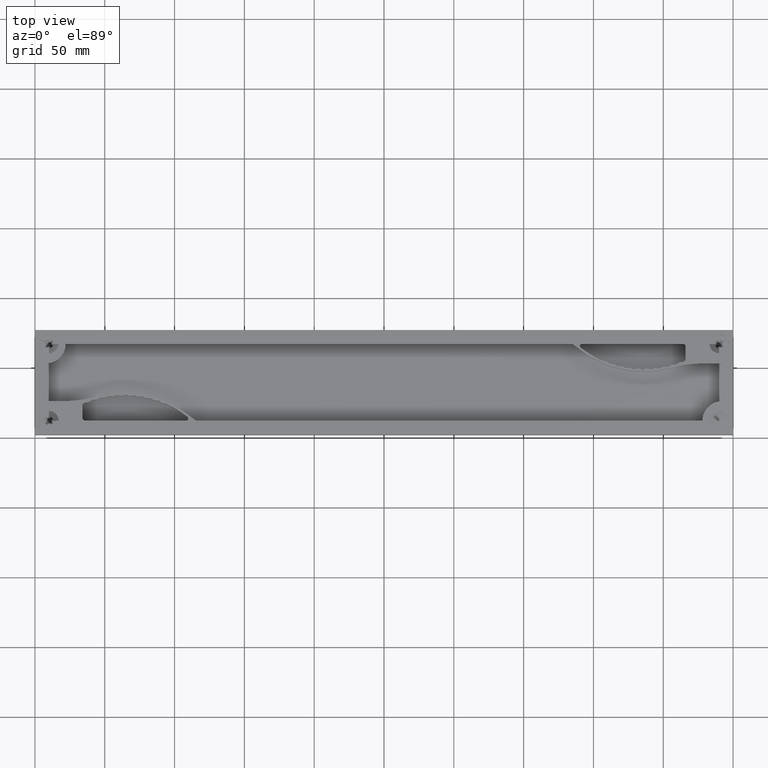
[diagram: clean part render]
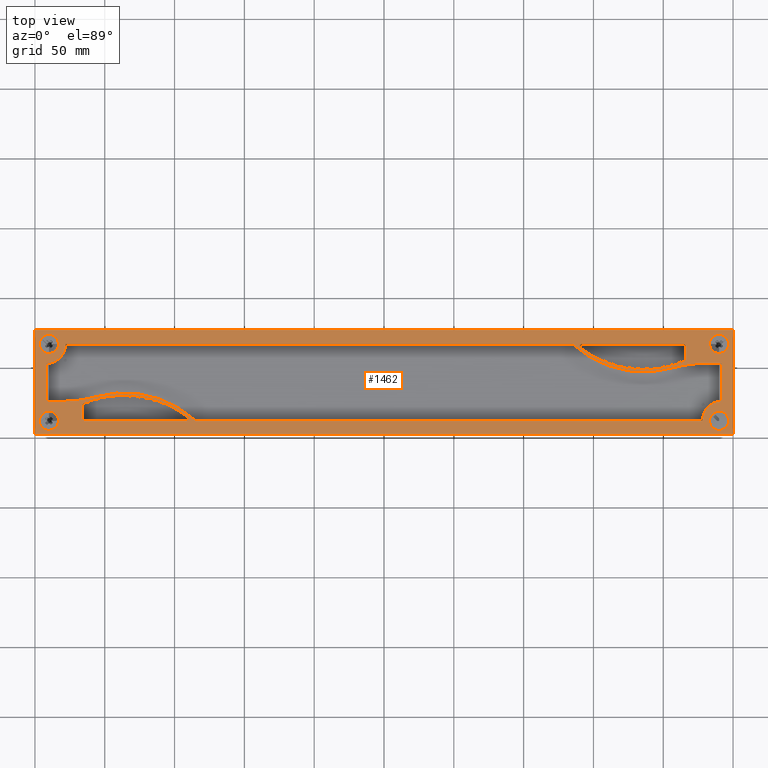
[diagram: same view with one face highlighted and labeled with its STEP entity id]
A machine part, top view. The second image highlights one B-rep face of the part: STEP entity #1462.
In plain terms, the highlighted planar face has unit normal (0, 0, -1).
Its self-contained STEP definition (entity closure, byte-faithful):
#1462=ADVANCED_FACE('',(#3495,#3496,#3497,#3498,#3499,#3500,#3501,#3502),#3503,.F.);
#3495=FACE_OUTER_BOUND('',#6240,.T.);
#3496=FACE_BOUND('',#6241,.T.);
#3497=FACE_BOUND('',#6242,.T.);
#3498=FACE_BOUND('',#6243,.T.);
#3499=FACE_BOUND('',#6244,.T.);
#3500=FACE_BOUND('',#6245,.T.);
#3501=FACE_BOUND('',#6246,.T.);
#3502=FACE_BOUND('',#6247,.T.);
#3503=PLANE('',#6248);
#6240=EDGE_LOOP('',(#9939,#9940,#9941,#9942));
#6241=EDGE_LOOP('',(#9943,#9944));
#6242=EDGE_LOOP('',(#9945,#9946));
#6243=EDGE_LOOP('',(#9947,#9948));
#6244=EDGE_LOOP('',(#9949,#9950));
#6245=EDGE_LOOP('',(#9951,#9952,#9953,#9954,#9955,#9956,#9957,#9958,#9959,#9960,#9961,#9962,#9963,#9964,#9965,#9966,#9967,#9968,#9969,#9970,#9971,#9972,#9973,#9974,#9975,#9976,#9977,#9978,#9979,#9980,#9981,#9982,#9983,#9984,#9985,#9986,#9987,#9988,#9989,#9990,#9991,#9992,#9993,#9994,#9995,#9996));
#6246=EDGE_LOOP('',(#9997,#9998,#9999,#10000,#10001,#10002,#10003,#10004,#10005,#10006,#10007,#10008,#10009,#10010,#10011,#10012,#10013,#10014,#10015,#10016,#10017,#10018,#10019,#10020,#10021,#10022,#10023,#10024,#10025,#10026,#10027,#10028,#10029,#10030,#10031,#10032,#10033,#10034,#10035,#10036,#10037,#10038,#10039,#10040,#10041,#10042));
#6247=EDGE_LOOP('',(#10043,#10044,#10045,#10046,#10047,#10048,#10049,#10050,#10051,#10052,#10053,#10054));
#6248=AXIS2_PLACEMENT_3D('',#10055,#10056,#10057);
#9939=ORIENTED_EDGE('',*,*,#17376,.T.);
#9940=ORIENTED_EDGE('',*,*,#17373,.F.);
#9941=ORIENTED_EDGE('',*,*,#17377,.F.);
#9942=ORIENTED_EDGE('',*,*,#17370,.F.);
#9943=ORIENTED_EDGE('',*,*,#16759,.T.);
#9944=ORIENTED_EDGE('',*,*,#16933,.T.);
#9945=ORIENTED_EDGE('',*,*,#16754,.T.);
#9946=ORIENTED_EDGE('',*,*,#16937,.T.);
#9947=ORIENTED_EDGE('',*,*,#16749,.T.);
#9948=ORIENTED_EDGE('',*,*,#16941,.T.);
#9949=ORIENTED_EDGE('',*,*,#16744,.T.);
#9950=ORIENTED_EDGE('',*,*,#16945,.T.);
#9951=ORIENTED_EDGE('',*,*,#16951,.T.);
#9952=ORIENTED_EDGE('',*,*,#17131,.T.);
#9953=ORIENTED_EDGE('',*,*,#17127,.T.);
#9954=ORIENTED_EDGE('',*,*,#17123,.T.);
#9955=ORIENTED_EDGE('',*,*,#17119,.T.);
#9956=ORIENTED_EDGE('',*,*,#17115,.T.);
#9957=ORIENTED_EDGE('',*,*,#17111,.T.);
#9958=ORIENTED_EDGE('',*,*,#17107,.T.);
#9959=ORIENTED_EDGE('',*,*,#17103,.T.);
#9960=ORIENTED_EDGE('',*,*,#17099,.T.);
#9961=ORIENTED_EDGE('',*,*,#17095,.T.);
#9962=ORIENTED_EDGE('',*,*,#17091,.T.);
#9963=ORIENTED_EDGE('',*,*,#17087,.T.);
#9964=ORIENTED_EDGE('',*,*,#17083,.T.);
#9965=ORIENTED_EDGE('',*,*,#17079,.T.);
#9966=ORIENTED_EDGE('',*,*,#17075,.T.);
#9967=ORIENTED_EDGE('',*,*,#17071,.T.);
#9968=ORIENTED_EDGE('',*,*,#17067,.T.);
#9969=ORIENTED_EDGE('',*,*,#17063,.T.);
#9970=ORIENTED_EDGE('',*,*,#17059,.T.);
#9971=ORIENTED_EDGE('',*,*,#17055,.T.);
#9972=ORIENTED_EDGE('',*,*,#17051,.T.);
#9973=ORIENTED_EDGE('',*,*,#17047,.T.);
#9974=ORIENTED_EDGE('',*,*,#17043,.T.);
#9975=ORIENTED_EDGE('',*,*,#17039,.T.);
#9976=ORIENTED_EDGE('',*,*,#17035,.T.);
#9977=ORIENTED_EDGE('',*,*,#17031,.T.);
#9978=ORIENTED_EDGE('',*,*,#17027,.T.);
#9979=ORIENTED_EDGE('',*,*,#17023,.T.);
#9980=ORIENTED_EDGE('',*,*,#17019,.T.);
#9981=ORIENTED_EDGE('',*,*,#17015,.T.);
#9982=ORIENTED_EDGE('',*,*,#17011,.T.);
#9983=ORIENTED_EDGE('',*,*,#17007,.T.);
#9984=ORIENTED_EDGE('',*,*,#17003,.T.);
#9985=ORIENTED_EDGE('',*,*,#16999,.T.);
#9986=ORIENTED_EDGE('',*,*,#16995,.T.);
#9987=ORIENTED_EDGE('',*,*,#16991,.T.);
#9988=ORIENTED_EDGE('',*,*,#16987,.T.);
#9989=ORIENTED_EDGE('',*,*,#16983,.T.);
#9990=ORIENTED_EDGE('',*,*,#16979,.T.);
#9991=ORIENTED_EDGE('',*,*,#16975,.T.);
#9992=ORIENTED_EDGE('',*,*,#16971,.T.);
#9993=ORIENTED_EDGE('',*,*,#16967,.T.);
#9994=ORIENTED_EDGE('',*,*,#16963,.T.);
#9995=ORIENTED_EDGE('',*,*,#16959,.T.);
#9996=ORIENTED_EDGE('',*,*,#16955,.T.);
#9997=ORIENTED_EDGE('',*,*,#17136,.T.);
#9998=ORIENTED_EDGE('',*,*,#17316,.T.);
#9999=ORIENTED_EDGE('',*,*,#17312,.T.);
#10000=ORIENTED_EDGE('',*,*,#17308,.T.);
#10001=ORIENTED_EDGE('',*,*,#17304,.T.);
#10002=ORIENTED_EDGE('',*,*,#17300,.T.);
#10003=ORIENTED_EDGE('',*,*,#17296,.T.);
#10004=ORIENTED_EDGE('',*,*,#17292,.T.);
#10005=ORIENTED_EDGE('',*,*,#17288,.T.);
#10006=ORIENTED_EDGE('',*,*,#17284,.T.);
#10007=ORIENTED_EDGE('',*,*,#17280,.T.);
#10008=ORIENTED_EDGE('',*,*,#17276,.T.);
#10009=ORIENTED_EDGE('',*,*,#17272,.T.);
#10010=ORIENTED_EDGE('',*,*,#17268,.T.);
#10011=ORIENTED_EDGE('',*,*,#17264,.T.);
#10012=ORIENTED_EDGE('',*,*,#17260,.T.);
#10013=ORIENTED_EDGE('',*,*,#17256,.T.);
#10014=ORIENTED_EDGE('',*,*,#17252,.T.);
#10015=ORIENTED_EDGE('',*,*,#17248,.T.);
#10016=ORIENTED_EDGE('',*,*,#17244,.T.);
#10017=ORIENTED_EDGE('',*,*,#17240,.T.);
#10018=ORIENTED_EDGE('',*,*,#17236,.T.);
#10019=ORIENTED_EDGE('',*,*,#17232,.T.);
#10020=ORIENTED_EDGE('',*,*,#17228,.T.);
#10021=ORIENTED_EDGE('',*,*,#17224,.T.);
#10022=ORIENTED_EDGE('',*,*,#17220,.T.);
#10023=ORIENTED_EDGE('',*,*,#17216,.T.);
#10024=ORIENTED_EDGE('',*,*,#17212,.T.);
#10025=ORIENTED_EDGE('',*,*,#17208,.T.);
#10026=ORIENTED_EDGE('',*,*,#17204,.T.);
#10027=ORIENTED_EDGE('',*,*,#17200,.T.);
#10028=ORIENTED_EDGE('',*,*,#17196,.T.);
#10029=ORIENTED_EDGE('',*,*,#17192,.T.);
#10030=ORIENTED_EDGE('',*,*,#17188,.T.);
#10031=ORIENTED_EDGE('',*,*,#17184,.T.);
#10032=ORIENTED_EDGE('',*,*,#17180,.T.);
#10033=ORIENTED_EDGE('',*,*,#17176,.T.);
#10034=ORIENTED_EDGE('',*,*,#17172,.T.);
#10035=ORIENTED_EDGE('',*,*,#17168,.T.);
#10036=ORIENTED_EDGE('',*,*,#17164,.T.);
#10037=ORIENTED_EDGE('',*,*,#17160,.T.);
#10038=ORIENTED_EDGE('',*,*,#17156,.T.);
#10039=ORIENTED_EDGE('',*,*,#17152,.T.);
#10040=ORIENTED_EDGE('',*,*,#17148,.T.);
#10041=ORIENTED_EDGE('',*,*,#17144,.T.);
#10042=ORIENTED_EDGE('',*,*,#17140,.T.);
#10043=ORIENTED_EDGE('',*,*,#17364,.T.);
#10044=ORIENTED_EDGE('',*,*,#17321,.T.);
#10045=ORIENTED_EDGE('',*,*,#17326,.F.);
#10046=ORIENTED_EDGE('',*,*,#17330,.F.);
#10047=ORIENTED_EDGE('',*,*,#17334,.T.);
#10048=ORIENTED_EDGE('',*,*,#17366,.T.);
#10049=ORIENTED_EDGE('',*,*,#17355,.T.);
#10050=ORIENTED_EDGE('',*,*,#17346,.T.);
#10051=ORIENTED_EDGE('',*,*,#17350,.F.);
#10052=ORIENTED_EDGE('',*,*,#17353,.F.);
#10053=ORIENTED_EDGE('',*,*,#17362,.T.);
#10054=ORIENTED_EDGE('',*,*,#17359,.T.);
#10055=CARTESIAN_POINT('',(250.0,37.5,136.8));
#10056=DIRECTION('',(0.0,0.0,-1.0));
#10057=DIRECTION('',(1.0,0.0,0.0));
#16744=EDGE_CURVE('',#20011,#20015,#20017,.T.);
#16749=EDGE_CURVE('',#20020,#20024,#20026,.T.);
#16754=EDGE_CURVE('',#20029,#20033,#20035,.T.);
#16759=EDGE_CURVE('',#20038,#20042,#20044,.T.);
#16933=EDGE_CURVE('',#20042,#20038,#20302,.T.);
#16937=EDGE_CURVE('',#20033,#20029,#20306,.T.);
#16941=EDGE_CURVE('',#20024,#20020,#20310,.T.);
#16945=EDGE_CURVE('',#20015,#20011,#20314,.T.);
#16951=EDGE_CURVE('',#20323,#20321,#20324,.T.);
#16955=EDGE_CURVE('',#20329,#20323,#20330,.T.);
#16959=EDGE_CURVE('',#20335,#20329,#20336,.T.);
#16963=EDGE_CURVE('',#20341,#20335,#20342,.T.);
#16967=EDGE_CURVE('',#20347,#20341,#20348,.T.);
#16971=EDGE_CURVE('',#20353,#20347,#20354,.T.);
#16975=EDGE_CURVE('',#20359,#20353,#20360,.T.);
#16979=EDGE_CURVE('',#20365,#20359,#20366,.T.);
#16983=EDGE_CURVE('',#20371,#20365,#20372,.T.);
#16987=EDGE_CURVE('',#20377,#20371,#20378,.T.);
#16991=EDGE_CURVE('',#20383,#20377,#20384,.T.);
#16995=EDGE_CURVE('',#20389,#20383,#20390,.T.);
#16999=EDGE_CURVE('',#20395,#20389,#20396,.T.);
#17003=EDGE_CURVE('',#20401,#20395,#20402,.T.);
#17007=EDGE_CURVE('',#20407,#20401,#20408,.T.);
#17011=EDGE_CURVE('',#20413,#20407,#20414,.T.);
#17015=EDGE_CURVE('',#20419,#20413,#20420,.T.);
#17019=EDGE_CURVE('',#20425,#20419,#20426,.T.);
#17023=EDGE_CURVE('',#20431,#20425,#20432,.T.);
#17027=EDGE_CURVE('',#20437,#20431,#20438,.T.);
#17031=EDGE_CURVE('',#20443,#20437,#20444,.T.);
#17035=EDGE_CURVE('',#20449,#20443,#20450,.T.);
#17039=EDGE_CURVE('',#20455,#20449,#20456,.T.);
#17043=EDGE_CURVE('',#20461,#20455,#20462,.T.);
#17047=EDGE_CURVE('',#20467,#20461,#20468,.T.);
#17051=EDGE_CURVE('',#20473,#20467,#20474,.T.);
#17055=EDGE_CURVE('',#20479,#20473,#20480,.T.);
#17059=EDGE_CURVE('',#20485,#20479,#20486,.T.);
#17063=EDGE_CURVE('',#20491,#20485,#20492,.T.);
#17067=EDGE_CURVE('',#20497,#20491,#20498,.T.);
#17071=EDGE_CURVE('',#20503,#20497,#20504,.T.);
#17075=EDGE_CURVE('',#20509,#20503,#20510,.T.);
#17079=EDGE_CURVE('',#20515,#20509,#20516,.T.);
#17083=EDGE_CURVE('',#20521,#20515,#20522,.T.);
#17087=EDGE_CURVE('',#20527,#20521,#20528,.T.);
#17091=EDGE_CURVE('',#20533,#20527,#20534,.T.);
#17095=EDGE_CURVE('',#20539,#20533,#20540,.T.);
#17099=EDGE_CURVE('',#20545,#20539,#20546,.T.);
#17103=EDGE_CURVE('',#20551,#20545,#20552,.T.);
#17107=EDGE_CURVE('',#20557,#20551,#20558,.T.);
#17111=EDGE_CURVE('',#20563,#20557,#20564,.T.);
#17115=EDGE_CURVE('',#20569,#20563,#20570,.T.);
#17119=EDGE_CURVE('',#20575,#20569,#20576,.T.);
#17123=EDGE_CURVE('',#20581,#20575,#20582,.T.);
#17127=EDGE_CURVE('',#20587,#20581,#20588,.T.);
#17131=EDGE_CURVE('',#20321,#20587,#20592,.T.);
#17136=EDGE_CURVE('',#20600,#20598,#20601,.T.);
#17140=EDGE_CURVE('',#20606,#20600,#20607,.T.);
#17144=EDGE_CURVE('',#20612,#20606,#20613,.T.);
#17148=EDGE_CURVE('',#20618,#20612,#20619,.T.);
#17152=EDGE_CURVE('',#20624,#20618,#20625,.T.);
#17156=EDGE_CURVE('',#20630,#20624,#20631,.T.);
#17160=EDGE_CURVE('',#20636,#20630,#20637,.T.);
#17164=EDGE_CURVE('',#20642,#20636,#20643,.T.);
#17168=EDGE_CURVE('',#20648,#20642,#20649,.T.);
#17172=EDGE_CURVE('',#20654,#20648,#20655,.T.);
#17176=EDGE_CURVE('',#20660,#20654,#20661,.T.);
#17180=EDGE_CURVE('',#20666,#20660,#20667,.T.);
#17184=EDGE_CURVE('',#20672,#20666,#20673,.T.);
#17188=EDGE_CURVE('',#20678,#20672,#20679,.T.);
#17192=EDGE_CURVE('',#20684,#20678,#20685,.T.);
#17196=EDGE_CURVE('',#20690,#20684,#20691,.T.);
#17200=EDGE_CURVE('',#20696,#20690,#20697,.T.);
#17204=EDGE_CURVE('',#20702,#20696,#20703,.T.);
#17208=EDGE_CURVE('',#20708,#20702,#20709,.T.);
#17212=EDGE_CURVE('',#20714,#20708,#20715,.T.);
#17216=EDGE_CURVE('',#20720,#20714,#20721,.T.);
#17220=EDGE_CURVE('',#20726,#20720,#20727,.T.);
#17224=EDGE_CURVE('',#20732,#20726,#20733,.T.);
#17228=EDGE_CURVE('',#20738,#20732,#20739,.T.);
#17232=EDGE_CURVE('',#20744,#20738,#20745,.T.);
#17236=EDGE_CURVE('',#20750,#20744,#20751,.T.);
#17240=EDGE_CURVE('',#20756,#20750,#20757,.T.);
#17244=EDGE_CURVE('',#20762,#20756,#20763,.T.);
#17248=EDGE_CURVE('',#20768,#20762,#20769,.T.);
#17252=EDGE_CURVE('',#20774,#20768,#20775,.T.);
#17256=EDGE_CURVE('',#20780,#20774,#20781,.T.);
#17260=EDGE_CURVE('',#20786,#20780,#20787,.T.);
#17264=EDGE_CURVE('',#20792,#20786,#20793,.T.);
#17268=EDGE_CURVE('',#20798,#20792,#20799,.T.);
#17272=EDGE_CURVE('',#20804,#20798,#20805,.T.);
#17276=EDGE_CURVE('',#20810,#20804,#20811,.T.);
#17280=EDGE_CURVE('',#20816,#20810,#20817,.T.);
#17284=EDGE_CURVE('',#20822,#20816,#20823,.T.);
#17288=EDGE_CURVE('',#20828,#20822,#20829,.T.);
#17292=EDGE_CURVE('',#20834,#20828,#20835,.T.);
#17296=EDGE_CURVE('',#20840,#20834,#20841,.T.);
#17300=EDGE_CURVE('',#20846,#20840,#20847,.T.);
#17304=EDGE_CURVE('',#20852,#20846,#20853,.T.);
#17308=EDGE_CURVE('',#20858,#20852,#20859,.T.);
#17312=EDGE_CURVE('',#20864,#20858,#20865,.T.);
#17316=EDGE_CURVE('',#20598,#20864,#20869,.T.);
#17321=EDGE_CURVE('',#20877,#20875,#20878,.T.);
#17326=EDGE_CURVE('',#20883,#20875,#20885,.T.);
#17330=EDGE_CURVE('',#20889,#20883,#20891,.T.);
#17334=EDGE_CURVE('',#20889,#20895,#20897,.T.);
#17346=EDGE_CURVE('',#20917,#20915,#20918,.T.);
#17350=EDGE_CURVE('',#20921,#20915,#20923,.T.);
#17353=EDGE_CURVE('',#20925,#20921,#20927,.T.);
#17355=EDGE_CURVE('',#20929,#20917,#20930,.T.);
#17359=EDGE_CURVE('',#20935,#20933,#20936,.T.);
#17362=EDGE_CURVE('',#20925,#20935,#20939,.T.);
#17364=EDGE_CURVE('',#20933,#20877,#20941,.T.);
#17366=EDGE_CURVE('',#20895,#20929,#20943,.T.);
#17370=EDGE_CURVE('',#20947,#20945,#20949,.T.);
#17373=EDGE_CURVE('',#20951,#20953,#20954,.T.);
#17376=EDGE_CURVE('',#20947,#20953,#20957,.T.);
#17377=EDGE_CURVE('',#20945,#20951,#20958,.T.);
#20011=VERTEX_POINT('',#24848);
#20015=VERTEX_POINT('',#24853);
#20017=CIRCLE('',#24856,6.85);
#20020=VERTEX_POINT('',#24859);
#20024=VERTEX_POINT('',#24864);
#20026=CIRCLE('',#24867,6.85);
#20029=VERTEX_POINT('',#24870);
#20033=VERTEX_POINT('',#24875);
#20035=CIRCLE('',#24878,6.85);
#20038=VERTEX_POINT('',#24881);
#20042=VERTEX_POINT('',#24886);
#20044=CIRCLE('',#24889,6.85);
#20302=CIRCLE('',#25247,6.85);
#20306=CIRCLE('',#25251,6.85);
#20310=CIRCLE('',#25255,6.85);
#20314=CIRCLE('',#25259,6.85);
#20321=VERTEX_POINT('',#25267);
#20323=VERTEX_POINT('',#25270);
#20324=LINE('',#25271,#25272);
#20329=VERTEX_POINT('',#25278);
#20330=CIRCLE('',#25279,1.4941604649);
#20335=VERTEX_POINT('',#25285);
#20336=CIRCLE('',#25286,73.4296730345997);
#20341=VERTEX_POINT('',#25293);
#20342=LINE('',#25294,#25295);
#20347=VERTEX_POINT('',#25301);
#20348=CIRCLE('',#25302,79.1827061398534);
#20353=VERTEX_POINT('',#25309);
#20354=LINE('',#25310,#25311);
#20359=VERTEX_POINT('',#25317);
#20360=CIRCLE('',#25318,97.8456988178513);
#20365=VERTEX_POINT('',#25325);
#20366=LINE('',#25326,#25327);
#20371=VERTEX_POINT('',#25333);
#20372=CIRCLE('',#25334,87.6979515937337);
#20377=VERTEX_POINT('',#25341);
#20378=LINE('',#25342,#25343);
#20383=VERTEX_POINT('',#25349);
#20384=CIRCLE('',#25350,78.3667684627986);
#20389=VERTEX_POINT('',#25357);
#20390=LINE('',#25358,#25359);
#20395=VERTEX_POINT('',#25365);
#20396=CIRCLE('',#25366,98.7825019353044);
#20401=VERTEX_POINT('',#25373);
#20402=LINE('',#25374,#25375);
#20407=VERTEX_POINT('',#25381);
#20408=CIRCLE('',#25382,76.0783495209778);
#20413=VERTEX_POINT('',#25389);
#20414=LINE('',#25390,#25391);
#20419=VERTEX_POINT('',#25397);
#20420=CIRCLE('',#25398,94.627261413129);
#20425=VERTEX_POINT('',#25405);
#20426=LINE('',#25406,#25407);
#20431=VERTEX_POINT('',#25413);
#20432=CIRCLE('',#25414,100.54484498576);
#20437=VERTEX_POINT('',#25421);
#20438=LINE('',#25422,#25423);
#20443=VERTEX_POINT('',#25429);
#20444=CIRCLE('',#25430,85.3144068020878);
#20449=VERTEX_POINT('',#25437);
#20450=LINE('',#25438,#25439);
#20455=VERTEX_POINT('',#25445);
#20456=CIRCLE('',#25446,79.2259488983683);
#20461=VERTEX_POINT('',#25453);
#20462=LINE('',#25454,#25455);
#20467=VERTEX_POINT('',#25461);
#20468=CIRCLE('',#25462,72.3003572930092);
#20473=VERTEX_POINT('',#25469);
#20474=LINE('',#25470,#25471);
#20479=VERTEX_POINT('',#25477);
#20480=CIRCLE('',#25478,65.7624824520744);
#20485=VERTEX_POINT('',#25485);
#20486=LINE('',#25486,#25487);
#20491=VERTEX_POINT('',#25493);
#20492=CIRCLE('',#25494,64.7003800457615);
#20497=VERTEX_POINT('',#25501);
#20498=LINE('',#25502,#25503);
#20503=VERTEX_POINT('',#25509);
#20504=CIRCLE('',#25510,57.2374791841819);
#20509=VERTEX_POINT('',#25517);
#20510=LINE('',#25518,#25519);
#20515=VERTEX_POINT('',#25525);
#20516=CIRCLE('',#25526,60.3679550864432);
#20521=VERTEX_POINT('',#25533);
#20522=LINE('',#25534,#25535);
#20527=VERTEX_POINT('',#25541);
#20528=CIRCLE('',#25542,73.6684887778374);
#20533=VERTEX_POINT('',#25549);
#20534=LINE('',#25550,#25551);
#20539=VERTEX_POINT('',#25557);
#20540=CIRCLE('',#25558,65.3318505641465);
#20545=VERTEX_POINT('',#25565);
#20546=LINE('',#25566,#25567);
#20551=VERTEX_POINT('',#25573);
#20552=CIRCLE('',#25574,62.2063943621606);
#20557=VERTEX_POINT('',#25581);
#20558=LINE('',#25582,#25583);
#20563=VERTEX_POINT('',#25589);
#20564=CIRCLE('',#25590,63.8563649370615);
#20569=VERTEX_POINT('',#25597);
#20570=LINE('',#25598,#25599);
#20575=VERTEX_POINT('',#25605);
#20576=CIRCLE('',#25606,78.3533317103426);
#20581=VERTEX_POINT('',#25612);
#20582=CIRCLE('',#25613,2.00738935259991);
#20587=VERTEX_POINT('',#25620);
#20588=LINE('',#25621,#25622);
#20592=CIRCLE('',#25627,2.00000000809996);
#20598=VERTEX_POINT('',#25634);
#20600=VERTEX_POINT('',#25637);
#20601=LINE('',#25638,#25639);
#20606=VERTEX_POINT('',#25645);
#20607=CIRCLE('',#25646,1.4941604649);
#20612=VERTEX_POINT('',#25652);
#20613=CIRCLE('',#25653,73.4296730345997);
#20618=VERTEX_POINT('',#25660);
#20619=LINE('',#25661,#25662);
#20624=VERTEX_POINT('',#25668);
#20625=CIRCLE('',#25669,79.1827061398534);
#20630=VERTEX_POINT('',#25676);
#20631=LINE('',#25677,#25678);
#20636=VERTEX_POINT('',#25684);
#20637=CIRCLE('',#25685,97.8456988178513);
#20642=VERTEX_POINT('',#25692);
#20643=LINE('',#25693,#25694);
#20648=VERTEX_POINT('',#25700);
#20649=CIRCLE('',#25701,87.6979515937337);
#20654=VERTEX_POINT('',#25708);
#20655=LINE('',#25709,#25710);
#20660=VERTEX_POINT('',#25716);
#20661=CIRCLE('',#25717,78.3667684627986);
#20666=VERTEX_POINT('',#25724);
#20667=LINE('',#25725,#25726);
#20672=VERTEX_POINT('',#25732);
#20673=CIRCLE('',#25733,98.7825019353044);
#20678=VERTEX_POINT('',#25740);
#20679=LINE('',#25741,#25742);
#20684=VERTEX_POINT('',#25748);
#20685=CIRCLE('',#25749,76.0783495209778);
#20690=VERTEX_POINT('',#25756);
#20691=LINE('',#25757,#25758);
#20696=VERTEX_POINT('',#25764);
#20697=CIRCLE('',#25765,94.627261413129);
#20702=VERTEX_POINT('',#25772);
#20703=LINE('',#25773,#25774);
#20708=VERTEX_POINT('',#25780);
#20709=CIRCLE('',#25781,100.54484498576);
#20714=VERTEX_POINT('',#25788);
#20715=LINE('',#25789,#25790);
#20720=VERTEX_POINT('',#25796);
#20721=CIRCLE('',#25797,85.3144068020878);
#20726=VERTEX_POINT('',#25804);
#20727=LINE('',#25805,#25806);
#20732=VERTEX_POINT('',#25812);
#20733=CIRCLE('',#25813,79.2259488983683);
#20738=VERTEX_POINT('',#25820);
#20739=LINE('',#25821,#25822);
#20744=VERTEX_POINT('',#25828);
#20745=CIRCLE('',#25829,72.3003572930092);
#20750=VERTEX_POINT('',#25836);
#20751=LINE('',#25837,#25838);
#20756=VERTEX_POINT('',#25844);
#20757=CIRCLE('',#25845,65.7624824520744);
#20762=VERTEX_POINT('',#25852);
#20763=LINE('',#25853,#25854);
#20768=VERTEX_POINT('',#25860);
#20769=CIRCLE('',#25861,64.7003800457615);
#20774=VERTEX_POINT('',#25868);
#20775=LINE('',#25869,#25870);
#20780=VERTEX_POINT('',#25876);
#20781=CIRCLE('',#25877,57.2374791841819);
#20786=VERTEX_POINT('',#25884);
#20787=LINE('',#25885,#25886);
#20792=VERTEX_POINT('',#25892);
#20793=CIRCLE('',#25893,60.3679550864432);
#20798=VERTEX_POINT('',#25900);
#20799=LINE('',#25901,#25902);
#20804=VERTEX_POINT('',#25908);
#20805=CIRCLE('',#25909,73.6684887778374);
#20810=VERTEX_POINT('',#25916);
#20811=LINE('',#25917,#25918);
#20816=VERTEX_POINT('',#25924);
#20817=CIRCLE('',#25925,65.3318505641465);
#20822=VERTEX_POINT('',#25932);
#20823=LINE('',#25933,#25934);
#20828=VERTEX_POINT('',#25940);
#20829=CIRCLE('',#25941,62.2063943621606);
#20834=VERTEX_POINT('',#25948);
#20835=LINE('',#25949,#25950);
#20840=VERTEX_POINT('',#25956);
#20841=CIRCLE('',#25957,63.8563649370615);
#20846=VERTEX_POINT('',#25964);
#20847=LINE('',#25965,#25966);
#20852=VERTEX_POINT('',#25972);
#20853=CIRCLE('',#25973,78.3533317103426);
#20858=VERTEX_POINT('',#25979);
#20859=CIRCLE('',#25980,2.00738935259991);
#20864=VERTEX_POINT('',#25987);
#20865=LINE('',#25988,#25989);
#20869=CIRCLE('',#25994,2.00000000809996);
#20875=VERTEX_POINT('',#26000);
#20877=VERTEX_POINT('',#26003);
#20878=CIRCLE('',#26004,75.6272389424002);
#20883=VERTEX_POINT('',#26010);
#20885=CIRCLE('',#26013,77.8550620979006);
#20889=VERTEX_POINT('',#26018);
#20891=LINE('',#26021,#26022);
#20895=VERTEX_POINT('',#26027);
#20897=LINE('',#26030,#26031);
#20915=VERTEX_POINT('',#26053);
#20917=VERTEX_POINT('',#26056);
#20918=CIRCLE('',#26057,75.6272389424002);
#20921=VERTEX_POINT('',#26061);
#20923=CIRCLE('',#26064,77.8550620979006);
#20925=VERTEX_POINT('',#26066);
#20927=LINE('',#26069,#26070);
#20929=VERTEX_POINT('',#26072);
#20930=LINE('',#26073,#26074);
#20933=VERTEX_POINT('',#26078);
#20935=VERTEX_POINT('',#26081);
#20936=CIRCLE('',#26082,14.0);
#20939=LINE('',#26086,#26087);
#20941=LINE('',#26089,#26090);
#20943=CIRCLE('',#26092,14.0);
#20945=VERTEX_POINT('',#26094);
#20947=VERTEX_POINT('',#26097);
#20949=LINE('',#26100,#26101);
#20951=VERTEX_POINT('',#26103);
#20953=VERTEX_POINT('',#26106);
#20954=LINE('',#26107,#26108);
#20957=LINE('',#26112,#26113);
#20958=LINE('',#26114,#26115);
#24848=CARTESIAN_POINT('',(16.85,10.0,136.8));
#24853=CARTESIAN_POINT('',(3.15000000000001,10.0,136.8));
#24856=AXIS2_PLACEMENT_3D('',#31832,#31833,#31834);
#24859=CARTESIAN_POINT('',(16.85,65.0,136.8));
#24864=CARTESIAN_POINT('',(3.15000000000001,65.0,136.8));
#24867=AXIS2_PLACEMENT_3D('',#31840,#31841,#31842);
#24870=CARTESIAN_POINT('',(496.85,10.0,136.8));
#24875=CARTESIAN_POINT('',(483.15,10.0,136.8));
#24878=AXIS2_PLACEMENT_3D('',#31848,#31849,#31850);
#24881=CARTESIAN_POINT('',(496.85,65.0,136.8));
#24886=CARTESIAN_POINT('',(483.15,65.0,136.8));
#24889=AXIS2_PLACEMENT_3D('',#31856,#31857,#31858);
#25247=AXIS2_PLACEMENT_3D('',#32031,#32032,#32033);
#25251=AXIS2_PLACEMENT_3D('',#32037,#32038,#32039);
#25255=AXIS2_PLACEMENT_3D('',#32043,#32044,#32045);
#25259=AXIS2_PLACEMENT_3D('',#32049,#32050,#32051);
#25267=CARTESIAN_POINT('',(464.000000000002,65.0,136.8));
#25270=CARTESIAN_POINT('',(391.73,65.0,136.8));
#25271=CARTESIAN_POINT('',(338.932500000001,65.0,136.8));
#25272=VECTOR('',#32057,1.0);
#25278=CARTESIAN_POINT('',(390.810000000018,62.3299999999214,136.8));
#25279=AXIS2_PLACEMENT_3D('',#32062,#32063,#32064);
#25285=CARTESIAN_POINT('',(407.430000000042,52.4599999999103,136.8));
#25286=AXIS2_PLACEMENT_3D('',#32069,#32070,#32071);
#25293=CARTESIAN_POINT('',(407.62,52.91,136.8));
#25294=CARTESIAN_POINT('',(392.887594300078,18.017460184394,136.8));
#25295=VECTOR('',#32074,1.0);
#25301=CARTESIAN_POINT('',(410.38,51.799999999996,136.8));
#25302=AXIS2_PLACEMENT_3D('',#32079,#32080,#32081);
#25309=CARTESIAN_POINT('',(410.21,51.34,136.8));
#25310=CARTESIAN_POINT('',(398.376497920999,19.319935550936,136.8));
#25311=VECTOR('',#32084,1.0);
#25317=CARTESIAN_POINT('',(413.039999999972,50.3400000000006,136.8));
#25318=AXIS2_PLACEMENT_3D('',#32089,#32090,#32091);
#25325=CARTESIAN_POINT('',(413.19,50.81,136.8));
#25326=CARTESIAN_POINT('',(403.682224732949,21.0189708299071,136.8));
#25327=VECTOR('',#32094,1.0);
#25333=CARTESIAN_POINT('',(416.039999999977,49.9300000000075,136.8));
#25334=AXIS2_PLACEMENT_3D('',#32099,#32100,#32101);
#25341=CARTESIAN_POINT('',(415.91,49.45,136.8));
#25342=CARTESIAN_POINT('',(408.765874443996,23.0716902547523,136.8));
#25343=VECTOR('',#32104,1.0);
#25349=CARTESIAN_POINT('',(418.810000000044,48.6800000000626,136.8));
#25350=AXIS2_PLACEMENT_3D('',#32109,#32110,#32111);
#25357=CARTESIAN_POINT('',(418.92,49.16,136.8));
#25358=CARTESIAN_POINT('',(413.408829896912,25.1112577319782,136.8));
#25359=VECTOR('',#32114,1.0);
#25365=CARTESIAN_POINT('',(421.829999999957,48.5200000000208,136.8));
#25366=AXIS2_PLACEMENT_3D('',#32119,#32120,#32121);
#25373=CARTESIAN_POINT('',(421.74,48.03,136.8));
#25374=CARTESIAN_POINT('',(418.024653505238,27.8020024174079,136.8));
#25375=VECTOR('',#32124,1.0);
#25381=CARTESIAN_POINT('',(424.690000000089,47.4999999999477,136.8));
#25382=AXIS2_PLACEMENT_3D('',#32129,#32130,#32131);
#25389=CARTESIAN_POINT('',(424.76,47.99,136.8));
#25390=CARTESIAN_POINT('',(422.260599999999,30.4941999999914,136.8));
#25391=VECTOR('',#32134,1.0);
#25397=CARTESIAN_POINT('',(427.709999999955,47.5899999999897,136.8));
#25398=AXIS2_PLACEMENT_3D('',#32139,#32140,#32141);
#25405=CARTESIAN_POINT('',(427.66,47.1,136.8));
#25406=CARTESIAN_POINT('',(426.272355729595,33.5010861500356,136.8));
#25407=VECTOR('',#32144,1.0);
#25413=CARTESIAN_POINT('',(430.650000000089,46.8200000000164,136.8));
#25414=AXIS2_PLACEMENT_3D('',#32149,#32150,#32151);
#25421=CARTESIAN_POINT('',(430.68,47.31,136.8));
#25422=CARTESIAN_POINT('',(430.035946058092,36.7904522821629,136.8));
#25423=VECTOR('',#32154,1.0);
#25429=CARTESIAN_POINT('',(433.660000000003,47.1499999999722,136.8));
#25430=AXIS2_PLACEMENT_3D('',#32159,#32160,#32161);
#25437=CARTESIAN_POINT('',(433.65,46.66,136.8));
#25438=CARTESIAN_POINT('',(433.520840965862,40.3312073272221,136.8));
#25439=VECTOR('',#32164,1.0);
#25445=CARTESIAN_POINT('',(436.649999999959,46.6200000000369,136.8));
#25446=AXIS2_PLACEMENT_3D('',#32169,#32170,#32171);
#25453=CARTESIAN_POINT('',(436.65,47.11,136.8));
#25454=CARTESIAN_POINT('',(436.65,42.1825000000092,136.8));
#25455=VECTOR('',#32174,1.0);
#25461=CARTESIAN_POINT('',(439.629999999958,47.1900000000756,136.8));
#25462=AXIS2_PLACEMENT_3D('',#32179,#32180,#32181);
#25469=CARTESIAN_POINT('',(439.65,46.7,136.8));
#25470=CARTESIAN_POINT('',(439.674729729729,46.0941216216429,136.8));
#25471=VECTOR('',#32184,1.0);
#25477=CARTESIAN_POINT('',(442.639999999928,46.9000000000478,136.8));
#25478=AXIS2_PLACEMENT_3D('',#32189,#32190,#32191);
#25485=CARTESIAN_POINT('',(442.6,47.39,136.8));
#25486=CARTESIAN_POINT('',(442.373516756309,50.1644197352207,136.8));
#25487=VECTOR('',#32194,1.0);
#25493=CARTESIAN_POINT('',(445.559999999996,47.7099999999696,136.8));
#25494=AXIS2_PLACEMENT_3D('',#32199,#32200,#32201);
#25501=CARTESIAN_POINT('',(445.62,47.22,136.8));
#25502=CARTESIAN_POINT('',(444.74643619204,54.3541044316714,136.8));
#25503=VECTOR('',#32204,1.0);
#25509=CARTESIAN_POINT('',(448.589999999993,47.6599999999807,136.8));
#25510=AXIS2_PLACEMENT_3D('',#32209,#32210,#32211);
#25517=CARTESIAN_POINT('',(448.51,48.15,136.8));
#25518=CARTESIAN_POINT('',(446.799809330629,58.6249178498965,136.8));
#25519=VECTOR('',#32214,1.0);
#25525=CARTESIAN_POINT('',(451.439999999949,48.7100000000147,136.8));
#25526=AXIS2_PLACEMENT_3D('',#32219,#32220,#32221);
#25533=CARTESIAN_POINT('',(451.54,48.23,136.8));
#25534=CARTESIAN_POINT('',(448.394450915141,63.3286356073261,136.8));
#25535=VECTOR('',#32224,1.0);
#25541=CARTESIAN_POINT('',(454.460000000014,48.9199999999888,136.8));
#25542=AXIS2_PLACEMENT_3D('',#32229,#32230,#32231);
#25549=CARTESIAN_POINT('',(454.34,49.4,136.8));
#25550=CARTESIAN_POINT('',(449.760000000001,67.7199999999974,136.8));
#25551=VECTOR('',#32234,1.0);
#25557=CARTESIAN_POINT('',(457.209999999936,50.1999999999581,136.8));
#25558=AXIS2_PLACEMENT_3D('',#32239,#32240,#32241);
#25565=CARTESIAN_POINT('',(457.35,49.73,136.8));
#25566=CARTESIAN_POINT('',(450.538854469857,72.595988565481,136.8));
#25567=VECTOR('',#32244,1.0);
#25573=CARTESIAN_POINT('',(460.199999999972,50.6500000000509,136.8));
#25574=AXIS2_PLACEMENT_3D('',#32249,#32250,#32251);
#25581=CARTESIAN_POINT('',(460.04,51.12,136.8));
#25582=CARTESIAN_POINT('',(451.250791075046,76.9383012170516,136.8));
#25583=VECTOR('',#32254,1.0);
#25589=CARTESIAN_POINT('',(462.829999999995,52.1499999999369,136.8));
#25590=AXIS2_PLACEMENT_3D('',#32259,#32260,#32261);
#25597=CARTESIAN_POINT('',(463.01,51.69,136.8));
#25598=CARTESIAN_POINT('',(451.230180327877,81.7939836065407,136.8));
#25599=VECTOR('',#32264,1.0);
#25605=CARTESIAN_POINT('',(464.790000000061,52.4200000000223,136.8));
#25606=AXIS2_PLACEMENT_3D('',#32269,#32270,#32271);
#25612=CARTESIAN_POINT('',(466.000000000032,54.2600000000012,136.8));
#25613=AXIS2_PLACEMENT_3D('',#32276,#32277,#32278);
#25620=CARTESIAN_POINT('',(466.0,63.0000000000018,136.8));
#25621=CARTESIAN_POINT('',(466.0,48.0650000000008,136.8));
#25622=VECTOR('',#32281,1.0);
#25627=AXIS2_PLACEMENT_3D('',#32286,#32287,#32288);
#25634=CARTESIAN_POINT('',(35.999999999998,10.0,136.8));
#25637=CARTESIAN_POINT('',(108.27,10.0,136.8));
#25638=CARTESIAN_POINT('',(161.067499999999,10.0,136.8));
#25639=VECTOR('',#32291,1.0);
#25645=CARTESIAN_POINT('',(109.189999999982,12.6700000000786,136.8));
#25646=AXIS2_PLACEMENT_3D('',#32296,#32297,#32298);
#25652=CARTESIAN_POINT('',(92.569999999958,22.5400000000897,136.8));
#25653=AXIS2_PLACEMENT_3D('',#32303,#32304,#32305);
#25660=CARTESIAN_POINT('',(92.38,22.09,136.8));
#25661=CARTESIAN_POINT('',(107.112405699922,56.982539815606,136.8));
#25662=VECTOR('',#32308,1.0);
#25668=CARTESIAN_POINT('',(89.62,23.200000000004,136.8));
#25669=AXIS2_PLACEMENT_3D('',#32313,#32314,#32315);
#25676=CARTESIAN_POINT('',(89.79,23.66,136.8));
#25677=CARTESIAN_POINT('',(101.623502079001,55.680064449064,136.8));
#25678=VECTOR('',#32318,1.0);
#25684=CARTESIAN_POINT('',(86.960000000028,24.6599999999994,136.8));
#25685=AXIS2_PLACEMENT_3D('',#32323,#32324,#32325);
#25692=CARTESIAN_POINT('',(86.81,24.19,136.8));
#25693=CARTESIAN_POINT('',(96.317775267051,53.9810291700929,136.8));
#25694=VECTOR('',#32328,1.0);
#25700=CARTESIAN_POINT('',(83.960000000023,25.0699999999925,136.8));
#25701=AXIS2_PLACEMENT_3D('',#32333,#32334,#32335);
#25708=CARTESIAN_POINT('',(84.09,25.55,136.8));
#25709=CARTESIAN_POINT('',(91.234125556004,51.9283097452477,136.8));
#25710=VECTOR('',#32338,1.0);
#25716=CARTESIAN_POINT('',(81.189999999956,26.3199999999374,136.8));
#25717=AXIS2_PLACEMENT_3D('',#32343,#32344,#32345);
#25724=CARTESIAN_POINT('',(81.08,25.84,136.8));
#25725=CARTESIAN_POINT('',(86.591170103088,49.8887422680218,136.8));
#25726=VECTOR('',#32348,1.0);
#25732=CARTESIAN_POINT('',(78.170000000043,26.4799999999792,136.8));
#25733=AXIS2_PLACEMENT_3D('',#32353,#32354,#32355);
#25740=CARTESIAN_POINT('',(78.26,26.97,136.8));
#25741=CARTESIAN_POINT('',(81.975346494762,47.1979975825921,136.8));
#25742=VECTOR('',#32358,1.0);
#25748=CARTESIAN_POINT('',(75.309999999911,27.5000000000523,136.8));
#25749=AXIS2_PLACEMENT_3D('',#32363,#32364,#32365);
#25756=CARTESIAN_POINT('',(75.24,27.01,136.8));
#25757=CARTESIAN_POINT('',(77.739400000001,44.5058000000086,136.8));
#25758=VECTOR('',#32368,1.0);
#25764=CARTESIAN_POINT('',(72.290000000045,27.4100000000103,136.8));
#25765=AXIS2_PLACEMENT_3D('',#32373,#32374,#32375);
#25772=CARTESIAN_POINT('',(72.34,27.9,136.8));
#25773=CARTESIAN_POINT('',(73.727644270405,41.4989138499644,136.8));
#25774=VECTOR('',#32378,1.0);
#25780=CARTESIAN_POINT('',(69.349999999911,28.1799999999836,136.8));
#25781=AXIS2_PLACEMENT_3D('',#32383,#32384,#32385);
#25788=CARTESIAN_POINT('',(69.32,27.69,136.8));
#25789=CARTESIAN_POINT('',(69.964053941908,38.2095477178371,136.8));
#25790=VECTOR('',#32388,1.0);
#25796=CARTESIAN_POINT('',(66.339999999997,27.8500000000278,136.8));
#25797=AXIS2_PLACEMENT_3D('',#32393,#32394,#32395);
#25804=CARTESIAN_POINT('',(66.35,28.34,136.8));
#25805=CARTESIAN_POINT('',(66.479159034138,34.6687926727779,136.8));
#25806=VECTOR('',#32398,1.0);
#25812=CARTESIAN_POINT('',(63.350000000041,28.3799999999631,136.8));
#25813=AXIS2_PLACEMENT_3D('',#32403,#32404,#32405);
#25820=CARTESIAN_POINT('',(63.35,27.89,136.8));
#25821=CARTESIAN_POINT('',(63.35,32.8174999999908,136.8));
#25822=VECTOR('',#32408,1.0);
#25828=CARTESIAN_POINT('',(60.370000000042,27.8099999999244,136.8));
#25829=AXIS2_PLACEMENT_3D('',#32413,#32414,#32415);
#25836=CARTESIAN_POINT('',(60.35,28.3,136.8));
#25837=CARTESIAN_POINT('',(60.325270270271,28.9058783783571,136.8));
#25838=VECTOR('',#32418,1.0);
#25844=CARTESIAN_POINT('',(57.360000000072,28.0999999999522,136.8));
#25845=AXIS2_PLACEMENT_3D('',#32423,#32424,#32425);
#25852=CARTESIAN_POINT('',(57.4,27.61,136.8));
#25853=CARTESIAN_POINT('',(57.626483243691,24.8355802647793,136.8));
#25854=VECTOR('',#32428,1.0);
#25860=CARTESIAN_POINT('',(54.440000000004,27.2900000000304,136.8));
#25861=AXIS2_PLACEMENT_3D('',#32433,#32434,#32435);
#25868=CARTESIAN_POINT('',(54.38,27.78,136.8));
#25869=CARTESIAN_POINT('',(55.25356380796,20.6458955683286,136.8));
#25870=VECTOR('',#32438,1.0);
#25876=CARTESIAN_POINT('',(51.410000000007,27.3400000000193,136.8));
#25877=AXIS2_PLACEMENT_3D('',#32443,#32444,#32445);
#25884=CARTESIAN_POINT('',(51.49,26.85,136.8));
#25885=CARTESIAN_POINT('',(53.200190669371,16.3750821501035,136.8));
#25886=VECTOR('',#32448,1.0);
#25892=CARTESIAN_POINT('',(48.560000000051,26.2899999999853,136.8));
#25893=AXIS2_PLACEMENT_3D('',#32453,#32454,#32455);
#25900=CARTESIAN_POINT('',(48.46,26.77,136.8));
#25901=CARTESIAN_POINT('',(51.605549084859,11.6713643926739,136.8));
#25902=VECTOR('',#32458,1.0);
#25908=CARTESIAN_POINT('',(45.539999999986,26.0800000000112,136.8));
#25909=AXIS2_PLACEMENT_3D('',#32463,#32464,#32465);
#25916=CARTESIAN_POINT('',(45.66,25.6,136.8));
#25917=CARTESIAN_POINT('',(50.239999999999,7.2800000000026,136.8));
#25918=VECTOR('',#32468,1.0);
#25924=CARTESIAN_POINT('',(42.790000000064,24.8000000000419,136.8));
#25925=AXIS2_PLACEMENT_3D('',#32473,#32474,#32475);
#25932=CARTESIAN_POINT('',(42.65,25.27,136.8));
#25933=CARTESIAN_POINT('',(49.461145530143,2.404011434519,136.8));
#25934=VECTOR('',#32478,1.0);
#25940=CARTESIAN_POINT('',(39.800000000028,24.3499999999491,136.8));
#25941=AXIS2_PLACEMENT_3D('',#32483,#32484,#32485);
#25948=CARTESIAN_POINT('',(39.96,23.88,136.8));
#25949=CARTESIAN_POINT('',(48.749208924954,-1.9383012170516,136.8));
#25950=VECTOR('',#32488,1.0);
#25956=CARTESIAN_POINT('',(37.170000000005,22.8500000000631,136.8));
#25957=AXIS2_PLACEMENT_3D('',#32493,#32494,#32495);
#25964=CARTESIAN_POINT('',(36.99,23.31,136.8));
#25965=CARTESIAN_POINT('',(48.769819672123,-6.7939836065407,136.8));
#25966=VECTOR('',#32498,1.0);
#25972=CARTESIAN_POINT('',(35.209999999939,22.5799999999777,136.8));
#25973=AXIS2_PLACEMENT_3D('',#32503,#32504,#32505);
#25979=CARTESIAN_POINT('',(33.999999999968,20.7399999999988,136.8));
#25980=AXIS2_PLACEMENT_3D('',#32510,#32511,#32512);
#25987=CARTESIAN_POINT('',(34.0,11.9999999999982,136.8));
#25988=CARTESIAN_POINT('',(34.0,26.9349999999992,136.8));
#25989=VECTOR('',#32515,1.0);
#25994=AXIS2_PLACEMENT_3D('',#32520,#32521,#32522);
#26000=CARTESIAN_POINT('',(457.299999999946,48.0000000000105,136.8));
#26003=CARTESIAN_POINT('',(384.800000000041,64.9999999999817,136.8));
#26004=AXIS2_PLACEMENT_3D('',#32527,#32528,#32529);
#26010=CARTESIAN_POINT('',(478.5,51.0,136.8));
#26013=AXIS2_PLACEMENT_3D('',#32535,#32536,#32537);
#26018=CARTESIAN_POINT('',(492.0,51.0,136.8));
#26021=CARTESIAN_POINT('',(492.0,51.0,136.8));
#26022=VECTOR('',#32540,1.0);
#26027=CARTESIAN_POINT('',(492.0,24.0,136.8));
#26030=CARTESIAN_POINT('',(492.0,37.5,136.8));
#26031=VECTOR('',#32543,1.0);
#26053=CARTESIAN_POINT('',(42.700000000054,26.9999999999895,136.8));
#26056=CARTESIAN_POINT('',(115.199999999959,10.0000000000183,136.8));
#26057=AXIS2_PLACEMENT_3D('',#32561,#32562,#32563);
#26061=CARTESIAN_POINT('',(21.5,24.0,136.8));
#26064=AXIS2_PLACEMENT_3D('',#32566,#32567,#32568);
#26066=CARTESIAN_POINT('',(8.0,24.0,136.8));
#26069=CARTESIAN_POINT('',(8.0,24.0,136.8));
#26070=VECTOR('',#32570,1.0);
#26072=CARTESIAN_POINT('',(478.0000000001,9.9999999999977,136.8));
#26073=CARTESIAN_POINT('',(250.0,10.0,136.8));
#26074=VECTOR('',#32571,1.0);
#26078=CARTESIAN_POINT('',(21.9999999999,65.0000000000023,136.8));
#26081=CARTESIAN_POINT('',(8.0,51.0,136.8));
#26082=AXIS2_PLACEMENT_3D('',#32574,#32575,#32576);
#26086=CARTESIAN_POINT('',(8.0,37.5,136.8));
#26087=VECTOR('',#32578,1.0);
#26089=CARTESIAN_POINT('',(250.0,65.0,136.8));
#26090=VECTOR('',#32579,1.0);
#26092=AXIS2_PLACEMENT_3D('',#32580,#32581,#32582);
#26094=CARTESIAN_POINT('',(500.0,75.0,136.8));
#26097=CARTESIAN_POINT('',(0.0,75.0,136.8));
#26100=CARTESIAN_POINT('',(250.0,75.0,136.8));
#26101=VECTOR('',#32585,1.0);
#26103=CARTESIAN_POINT('',(500.0,0.0,136.8));
#26106=CARTESIAN_POINT('',(0.0,0.0,136.8));
#26107=CARTESIAN_POINT('',(250.0,0.0,136.8));
#26108=VECTOR('',#32587,1.0);
#26112=CARTESIAN_POINT('',(0.0,37.5,136.8));
#26113=VECTOR('',#32589,1.0);
#26114=CARTESIAN_POINT('',(500.0,37.5,136.8));
#26115=VECTOR('',#32590,1.0);
#31832=CARTESIAN_POINT('',(10.0,10.0,136.8));
#31833=DIRECTION('',(0.0,0.0,-1.0));
#31834=DIRECTION('',(1.0,0.0,0.0));
#31840=CARTESIAN_POINT('',(10.0,65.0,136.8));
#31841=DIRECTION('',(0.0,0.0,-1.0));
#31842=DIRECTION('',(1.0,0.0,0.0));
#31848=CARTESIAN_POINT('',(490.0,10.0,136.8));
#31849=DIRECTION('',(0.0,0.0,-1.0));
#31850=DIRECTION('',(1.0,0.0,0.0));
#31856=CARTESIAN_POINT('',(490.0,65.0,136.8));
#31857=DIRECTION('',(0.0,0.0,-1.0));
#31858=DIRECTION('',(1.0,0.0,0.0));
#32031=CARTESIAN_POINT('',(490.0,65.0,136.8));
#32032=DIRECTION('',(0.0,0.0,-1.0));
#32033=DIRECTION('',(1.0,0.0,0.0));
#32037=CARTESIAN_POINT('',(490.0,10.0,136.8));
#32038=DIRECTION('',(0.0,0.0,-1.0));
#32039=DIRECTION('',(1.0,0.0,0.0));
#32043=CARTESIAN_POINT('',(10.0,65.0,136.8));
#32044=DIRECTION('',(0.0,0.0,-1.0));
#32045=DIRECTION('',(1.0,0.0,0.0));
#32049=CARTESIAN_POINT('',(10.0,10.0,136.8));
#32050=DIRECTION('',(0.0,0.0,-1.0));
#32051=DIRECTION('',(1.0,0.0,0.0));
#32057=DIRECTION('',(1.0,0.0,0.0));
#32062=CARTESIAN_POINT('',(391.7319078143,63.5058407531,136.8));
#32063=DIRECTION('',(0.0,0.0,-1.0));
#32064=DIRECTION('',(-0.00127684696400447,0.999999184830583,0.0));
#32069=CARTESIAN_POINT('',(436.2877655948,119.981450272,136.8));
#32070=DIRECTION('',(-0.0,0.0,-1.0));
#32071=DIRECTION('',(-0.619337710700988,-0.785124703536743,0.0));
#32074=DIRECTION('',(-0.388972037040359,-0.921249561411387,-0.0));
#32079=CARTESIAN_POINT('',(438.540130359158,125.806134946942,136.8));
#32080=DIRECTION('',(-0.0,0.0,-1.0));
#32081=DIRECTION('',(-0.39049095271498,-0.920606765045612,0.0));
#32084=DIRECTION('',(0.346650140871606,0.937994498829122,0.0));
#32089=CARTESIAN_POINT('',(444.22028378405,143.084653108943,136.8));
#32090=DIRECTION('',(-0.0,0.0,-1.0));
#32091=DIRECTION('',(-0.347590994749761,-0.937646255455047,0.0));
#32094=DIRECTION('',(-0.304040173793207,-0.95265921121868,-0.0));
#32099=CARTESIAN_POINT('',(440.484614598807,134.152274552833,136.8));
#32100=DIRECTION('',(-0.0,0.0,-1.0));
#32101=DIRECTION('',(-0.311234345874608,-0.950333195225761,0.0));
#32104=DIRECTION('',(0.261415475728309,0.965226371919946,0.0));
#32109=CARTESIAN_POINT('',(437.467211881925,124.793460334595,136.8));
#32110=DIRECTION('',(-0.0,0.0,-1.0));
#32111=DIRECTION('',(-0.275081036320941,-0.96142104379746,0.0));
#32114=DIRECTION('',(-0.223376156329368,-0.974732318528281,-0.0));
#32119=CARTESIAN_POINT('',(441.590846668366,145.305802820197,136.8));
#32120=DIRECTION('',(-0.0,0.0,-1.0));
#32121=DIRECTION('',(-0.229502657092582,-0.973308034687603,0.0));
#32124=DIRECTION('',(0.180651520328339,0.983547166232032,0.0));
#32129=CARTESIAN_POINT('',(436.665310442695,122.629935482679,136.8));
#32130=DIRECTION('',(-0.0,0.0,-1.0));
#32131=DIRECTION('',(-0.196183415343273,-0.980567217249408,0.0));
#32134=DIRECTION('',(-0.141421356237296,-0.989949493661168,-0.0));
#32139=CARTESIAN_POINT('',(438.94789329819,141.54758807443,136.8));
#32140=DIRECTION('',(-0.0,0.0,-1.0));
#32141=DIRECTION('',(-0.149934522952569,-0.988695928396079,0.0));
#32144=DIRECTION('',(0.101513688013417,0.994834142531264,0.0));
#32149=CARTESIAN_POINT('',(438.528510077196,147.055696895761,136.8));
#32150=DIRECTION('',(-0.0,0.0,-1.0));
#32151=DIRECTION('',(-0.108096144349099,-0.994140444593649,0.0));
#32154=DIRECTION('',(-0.0611100632795056,-0.99813103356522,-0.0));
#32159=CARTESIAN_POINT('',(436.743351454001,132.408670830588,136.8));
#32160=DIRECTION('',(-0.0,0.0,-1.0));
#32161=DIRECTION('',(-0.0710706629888138,-0.997471283226906,0.0));
#32164=DIRECTION('',(0.0204039146625008,0.999791818463447,0.0));
#32169=CARTESIAN_POINT('',(436.206062734699,125.844705102368,136.8));
#32170=DIRECTION('',(-0.0,0.0,-1.0));
#32171=DIRECTION('',(-0.0322629488223481,-0.999479415562565,0.0));
#32174=DIRECTION('',(0.0,-1.0,0.0));
#32179=CARTESIAN_POINT('',(436.200162204497,119.408957880909,136.8));
#32180=DIRECTION('',(0.0,0.0,-1.0));
#32181=DIRECTION('',(0.0062217921502061,-0.999980644463901,0.0));
#32184=DIRECTION('',(-0.0407823695143301,0.999168053100577,0.0));
#32189=CARTESIAN_POINT('',(436.757118866201,112.398822949974,136.8));
#32190=DIRECTION('',(0.0,0.0,-1.0));
#32191=DIRECTION('',(0.0439898408013215,-0.999031978420248,0.0));
#32194=DIRECTION('',(0.0813620094548907,-0.996684615822609,0.0));
#32199=CARTESIAN_POINT('',(437.127724791305,111.858545680062,136.8));
#32200=DIRECTION('',(0.0,0.0,-1.0));
#32201=DIRECTION('',(0.0845787181590136,-0.996416800558169,0.0));
#32204=DIRECTION('',(-0.121541190452503,0.992586388695406,0.0));
#32209=CARTESIAN_POINT('',(438.719809605503,104.040035162582,136.8));
#32210=DIRECTION('',(0.0,0.0,-1.0));
#32211=DIRECTION('',(0.120553708738025,-0.99270680631771,0.0));
#32214=DIRECTION('',(0.161131898902177,-0.986932880775678,0.0));
#32219=CARTESIAN_POINT('',(438.645689143292,107.706572875242,136.8));
#32220=DIRECTION('',(0.0,0.0,-1.0));
#32221=DIRECTION('',(0.163403097595863,-0.986559388833778,0.0));
#32224=DIRECTION('',(-0.20395425411199,0.978980419737607,0.0));
#32229=CARTESIAN_POINT('',(436.062113598491,120.254171438136,136.8));
#32230=DIRECTION('',(0.0,0.0,-1.0));
#32231=DIRECTION('',(0.210101858450857,-0.977679502227338,0.0));
#32234=DIRECTION('',(0.242535625036341,-0.97014250014533,0.0));
#32239=CARTESIAN_POINT('',(438.237351928214,112.716312457448,136.8));
#32240=DIRECTION('',(0.0,0.0,-1.0));
#32241=DIRECTION('',(0.246474696992572,-0.969149226766663,0.0));
#32244=DIRECTION('',(-0.28547658660014,0.958385683586276,0.0));
#32249=CARTESIAN_POINT('',(439.670863819112,109.371291430063,136.8));
#32250=DIRECTION('',(0.0,0.0,-1.0));
#32251=DIRECTION('',(0.284201268410043,-0.95876464214849,0.0));
#32254=DIRECTION('',(0.322263797804299,-0.946649906050146,0.0));
#32259=CARTESIAN_POINT('',(439.325714370413,111.523259132464,136.8));
#32260=DIRECTION('',(0.0,0.0,-1.0));
#32261=DIRECTION('',(0.324388737912465,-0.945923858836195,0.0));
#32264=DIRECTION('',(-0.364399348580474,0.931242779705769,0.0));
#32269=CARTESIAN_POINT('',(434.171674118269,124.543246670617,136.8));
#32270=DIRECTION('',(0.0,0.0,-1.0));
#32271=DIRECTION('',(0.368054877211849,-0.929804069339649,0.0));
#32276=CARTESIAN_POINT('',(463.9926118779,54.2622226237999,136.8));
#32277=DIRECTION('',(0.0,0.0,-1.0));
#32278=DIRECTION('',(0.397226437963319,-0.917720631228793,0.0));
#32281=DIRECTION('',(0.0,-1.0,0.0));
#32286=CARTESIAN_POINT('',(463.9999999919,62.9999999919,136.8));
#32287=DIRECTION('',(0.0,0.0,-1.0));
#32288=DIRECTION('',(1.0,4.0508947143611E-009,0.0));
#32291=DIRECTION('',(-1.0,0.0,0.0));
#32296=CARTESIAN_POINT('',(108.2680921857,11.4941592469,136.8));
#32297=DIRECTION('',(0.0,0.0,-1.0));
#32298=DIRECTION('',(0.00127684696400447,-0.999999184830583,0.0));
#32303=CARTESIAN_POINT('',(63.7122344052,-44.9814502719998,136.8));
#32304=DIRECTION('',(0.0,0.0,-1.0));
#32305=DIRECTION('',(0.619337710700988,0.785124703536743,0.0));
#32308=DIRECTION('',(0.388972037040359,0.921249561411387,0.0));
#32313=CARTESIAN_POINT('',(61.459869640842,-50.8061349469421,136.8));
#32314=DIRECTION('',(0.0,0.0,-1.0));
#32315=DIRECTION('',(0.39049095271498,0.920606765045612,0.0));
#32318=DIRECTION('',(-0.346650140871606,-0.937994498829122,-0.0));
#32323=CARTESIAN_POINT('',(55.77971621595,-68.084653108943,136.8));
#32324=DIRECTION('',(0.0,0.0,-1.0));
#32325=DIRECTION('',(0.347590994749761,0.937646255455047,0.0));
#32328=DIRECTION('',(0.304040173793207,0.95265921121868,0.0));
#32333=CARTESIAN_POINT('',(59.515385401193,-59.152274552833,136.8));
#32334=DIRECTION('',(0.0,0.0,-1.0));
#32335=DIRECTION('',(0.311234345874608,0.950333195225761,0.0));
#32338=DIRECTION('',(-0.261415475728309,-0.965226371919946,-0.0));
#32343=CARTESIAN_POINT('',(62.532788118075,-49.7934603345953,136.8));
#32344=DIRECTION('',(0.0,0.0,-1.0));
#32345=DIRECTION('',(0.275081036320941,0.96142104379746,0.0));
#32348=DIRECTION('',(0.223376156329368,0.974732318528281,0.0));
#32353=CARTESIAN_POINT('',(58.409153331634,-70.305802820197,136.8));
#32354=DIRECTION('',(0.0,0.0,-1.0));
#32355=DIRECTION('',(0.229502657092582,0.973308034687603,0.0));
#32358=DIRECTION('',(-0.180651520328339,-0.983547166232032,-0.0));
#32363=CARTESIAN_POINT('',(63.334689557305,-47.6299354826785,136.8));
#32364=DIRECTION('',(0.0,0.0,-1.0));
#32365=DIRECTION('',(0.196183415343273,0.980567217249408,0.0));
#32368=DIRECTION('',(0.141421356237296,0.989949493661168,0.0));
#32373=CARTESIAN_POINT('',(61.05210670181,-66.54758807443,136.8));
#32374=DIRECTION('',(0.0,0.0,-1.0));
#32375=DIRECTION('',(0.149934522952569,0.988695928396079,0.0));
#32378=DIRECTION('',(-0.101513688013417,-0.994834142531264,-0.0));
#32383=CARTESIAN_POINT('',(61.471489922804,-72.055696895761,136.8));
#32384=DIRECTION('',(0.0,0.0,-1.0));
#32385=DIRECTION('',(0.108096144349099,0.994140444593649,0.0));
#32388=DIRECTION('',(0.0611100632795056,0.99813103356522,0.0));
#32393=CARTESIAN_POINT('',(63.256648545999,-57.4086708305876,136.8));
#32394=DIRECTION('',(0.0,0.0,-1.0));
#32395=DIRECTION('',(0.0710706629888138,0.997471283226906,0.0));
#32398=DIRECTION('',(-0.0204039146625008,-0.999791818463447,-0.0));
#32403=CARTESIAN_POINT('',(63.793937265301,-50.8447051023684,136.8));
#32404=DIRECTION('',(0.0,0.0,-1.0));
#32405=DIRECTION('',(0.0322629488223481,0.999479415562565,0.0));
#32408=DIRECTION('',(0.0,1.0,0.0));
#32413=CARTESIAN_POINT('',(63.799837795503,-44.4089578809092,136.8));
#32414=DIRECTION('',(0.0,0.0,-1.0));
#32415=DIRECTION('',(-0.0062217921502061,0.999980644463901,0.0));
#32418=DIRECTION('',(0.0407823695143301,-0.999168053100577,0.0));
#32423=CARTESIAN_POINT('',(63.242881133799,-37.3988229499744,136.8));
#32424=DIRECTION('',(0.0,0.0,-1.0));
#32425=DIRECTION('',(-0.0439898408013215,0.999031978420248,0.0));
#32428=DIRECTION('',(-0.0813620094548907,0.996684615822609,0.0));
#32433=CARTESIAN_POINT('',(62.872275208695,-36.8585456800618,136.8));
#32434=DIRECTION('',(0.0,0.0,-1.0));
#32435=DIRECTION('',(-0.0845787181590136,0.996416800558169,0.0));
#32438=DIRECTION('',(0.121541190452503,-0.992586388695406,0.0));
#32443=CARTESIAN_POINT('',(61.280190394497,-29.0400351625821,136.8));
#32444=DIRECTION('',(0.0,0.0,-1.0));
#32445=DIRECTION('',(-0.120553708738025,0.99270680631771,0.0));
#32448=DIRECTION('',(-0.161131898902177,0.986932880775678,0.0));
#32453=CARTESIAN_POINT('',(61.354310856708,-32.7065728752424,136.8));
#32454=DIRECTION('',(0.0,0.0,-1.0));
#32455=DIRECTION('',(-0.163403097595863,0.986559388833778,0.0));
#32458=DIRECTION('',(0.20395425411199,-0.978980419737607,0.0));
#32463=CARTESIAN_POINT('',(63.937886401509,-45.2541714381363,136.8));
#32464=DIRECTION('',(0.0,0.0,-1.0));
#32465=DIRECTION('',(-0.210101858450857,0.977679502227338,0.0));
#32468=DIRECTION('',(-0.242535625036341,0.97014250014533,0.0));
#32473=CARTESIAN_POINT('',(61.762648071786,-37.7163124574484,136.8));
#32474=DIRECTION('',(0.0,0.0,-1.0));
#32475=DIRECTION('',(-0.246474696992572,0.969149226766663,0.0));
#32478=DIRECTION('',(0.28547658660014,-0.958385683586276,0.0));
#32483=CARTESIAN_POINT('',(60.329136180888,-34.3712914300625,136.8));
#32484=DIRECTION('',(0.0,0.0,-1.0));
#32485=DIRECTION('',(-0.284201268410043,0.95876464214849,0.0));
#32488=DIRECTION('',(-0.322263797804299,0.946649906050146,0.0));
#32493=CARTESIAN_POINT('',(60.674285629587,-36.5232591324637,136.8));
#32494=DIRECTION('',(0.0,0.0,-1.0));
#32495=DIRECTION('',(-0.324388737912465,0.945923858836195,0.0));
#32498=DIRECTION('',(0.364399348580474,-0.931242779705769,0.0));
#32503=CARTESIAN_POINT('',(65.828325881731,-49.5432466706166,136.8));
#32504=DIRECTION('',(0.0,0.0,-1.0));
#32505=DIRECTION('',(-0.368054877211849,0.929804069339649,0.0));
#32510=CARTESIAN_POINT('',(36.0073881221,20.7377773762001,136.8));
#32511=DIRECTION('',(0.0,0.0,-1.0));
#32512=DIRECTION('',(-0.397226437963319,0.917720631228793,0.0));
#32515=DIRECTION('',(0.0,1.0,0.0));
#32520=CARTESIAN_POINT('',(36.0000000081,12.0000000081,136.8));
#32521=DIRECTION('',(-0.0,0.0,-1.0));
#32522=DIRECTION('',(-1.0,-4.0508947143611E-009,0.0));
#32527=CARTESIAN_POINT('',(436.0776495332,120.5885053622,136.8));
#32528=DIRECTION('',(0.0,0.0,1.0));
#32529=DIRECTION('',(-0.678031490376287,-0.73503285508752,0.0));
#32535=CARTESIAN_POINT('',(478.7049234537,-26.8547924064005,136.8));
#32536=DIRECTION('',(0.0,0.0,1.0));
#32537=DIRECTION('',(-0.00263211470454112,0.999996535980091,0.0));
#32540=DIRECTION('',(-1.0,0.0,0.0));
#32543=DIRECTION('',(0.0,-1.0,0.0));
#32561=CARTESIAN_POINT('',(63.9223504668,-45.5885053622003,136.8));
#32562=DIRECTION('',(0.0,-0.0,1.0));
#32563=DIRECTION('',(0.678031490376287,0.73503285508752,0.0));
#32566=CARTESIAN_POINT('',(21.2950765463,101.854792406401,136.8));
#32567=DIRECTION('',(0.0,0.0,1.0));
#32568=DIRECTION('',(0.00263211470454112,-0.999996535980091,0.0));
#32570=DIRECTION('',(1.0,0.0,0.0));
#32571=DIRECTION('',(-1.0,0.0,0.0));
#32574=CARTESIAN_POINT('',(7.99999999990001,65.0000000001,136.8));
#32575=DIRECTION('',(0.0,0.0,1.0));
#32576=DIRECTION('',(6.98158990936853E-012,-1.0,0.0));
#32578=DIRECTION('',(0.0,1.0,0.0));
#32579=DIRECTION('',(1.0,0.0,0.0));
#32580=CARTESIAN_POINT('',(492.0000000001,9.9999999999,136.8));
#32581=DIRECTION('',(0.0,0.0,1.0));
#32582=DIRECTION('',(-6.98158990936853E-012,1.0,0.0));
#32585=DIRECTION('',(1.0,0.0,0.0));
#32587=DIRECTION('',(-1.0,0.0,0.0));
#32589=DIRECTION('',(0.0,-1.0,0.0));
#32590=DIRECTION('',(0.0,-1.0,0.0));